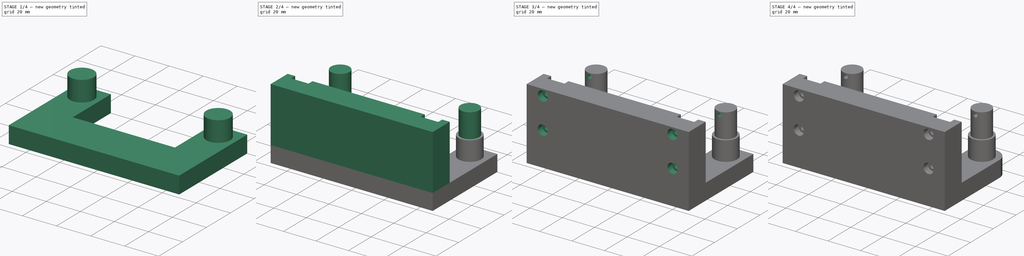
[diagram: build sequence overview — one tinted view per stage of 4, left to right]
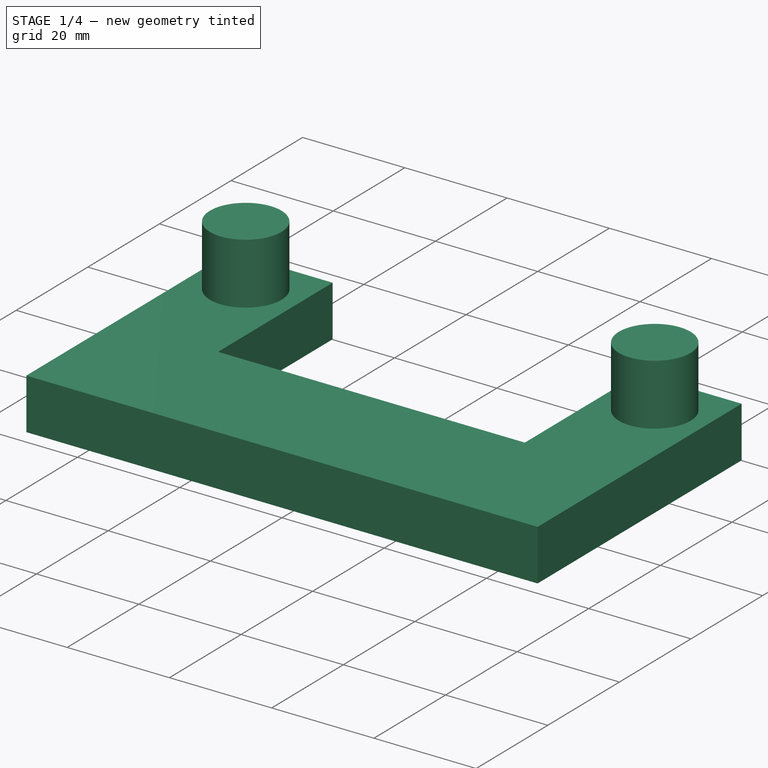
[diagram: stage 1 of 4 — iso view after this stage's code; geometry added in this stage tinted green]
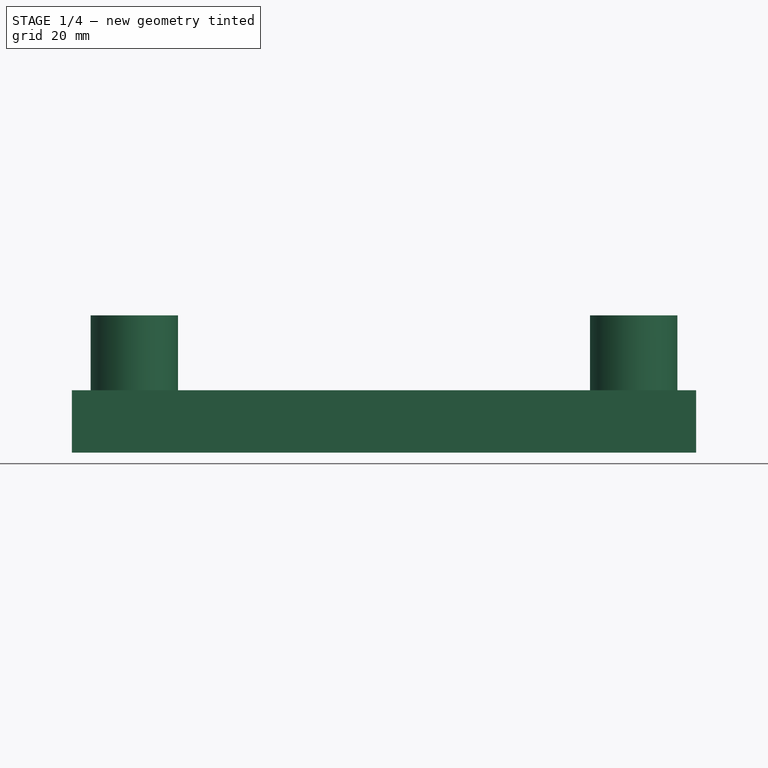
[diagram: stage 1 of 4 — front view after this stage's code; geometry added in this stage tinted green]
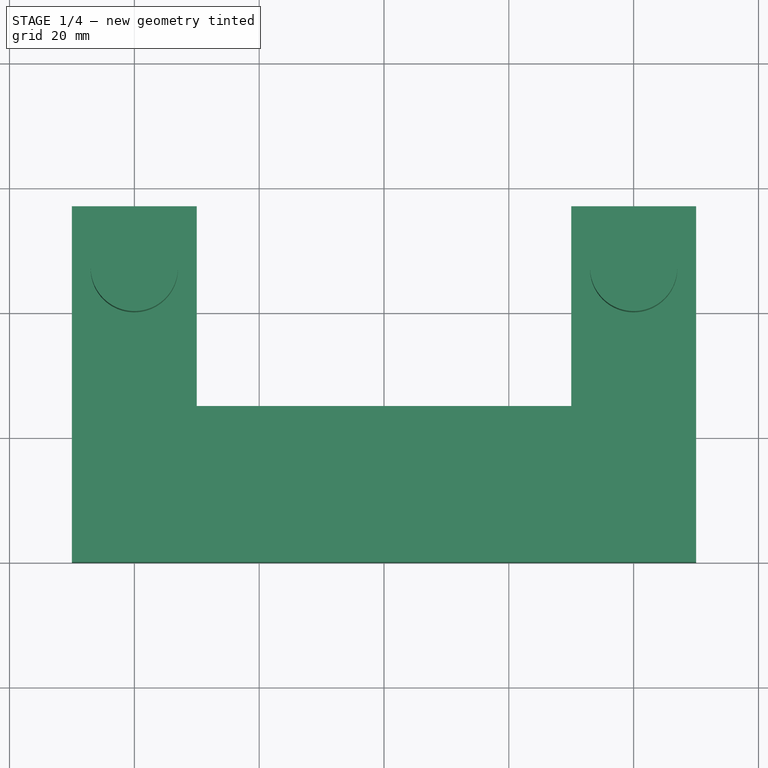
[diagram: stage 1 of 4 — top view after this stage's code; geometry added in this stage tinted green]
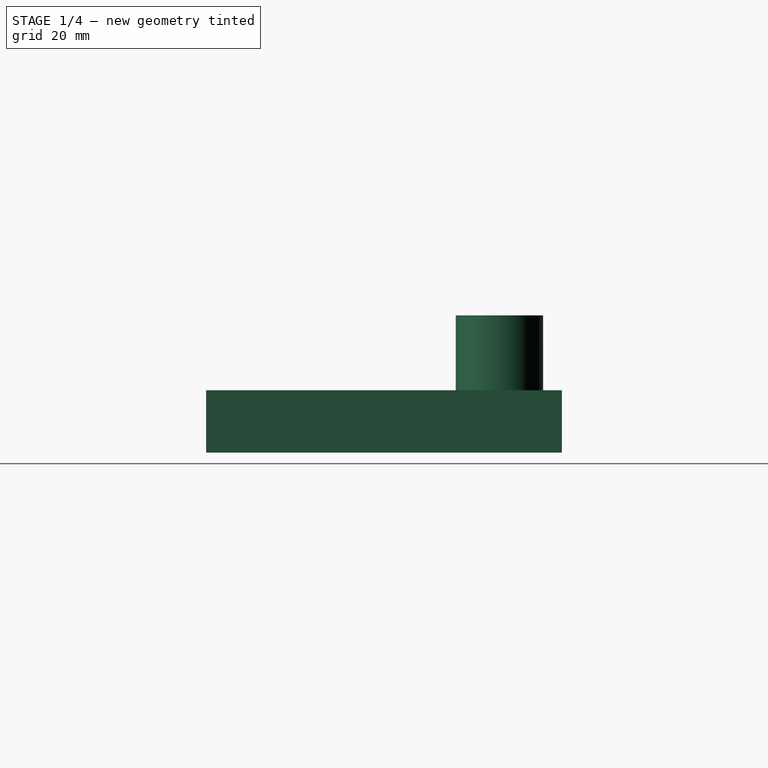
[diagram: stage 1 of 4 — right view after this stage's code; geometry added in this stage tinted green]
FCSTD DOCUMENT  (FreeCAD 0.17R13522 (Git))
Label: Suporte
License: All rights reserved
LicenseURL: http://en.wikipedia.org/wiki/All_rights_reserved
objects: Sketcher::SketchObject×7, PartDesign::Pad×4, PartDesign::Pocket×3, PartDesign::Chamfer×1, PartDesign::Fillet×1, PartDesign::Body×1
note: 24 computed .brp shape members not serialized (recipe doc carries the construction recipe); baked Part::Feature solids carry a one-line shape summary decoded from their .brp

FEATURE [Sketcher::SketchObject] Sketch
  MapMode = 5
  Support = -> [XY_Plane]
  sketch-geometry (11):
    g0: LineSegment StartX=-50 StartY=0 StartZ=0 EndX=50 EndY=0 EndZ=0
    g1: LineSegment StartX=50 StartY=0 StartZ=0 EndX=50 EndY=57 EndZ=0
    g2: LineSegment StartX=50 StartY=57 StartZ=0 EndX=30 EndY=57 EndZ=0
    g3: LineSegment StartX=30 StartY=57 StartZ=0 EndX=30 EndY=25 EndZ=0
    g4: LineSegment StartX=30 StartY=25 StartZ=0 EndX=-30 EndY=25 EndZ=0
    g5: LineSegment StartX=-30 StartY=25 StartZ=0 EndX=-30 EndY=57 EndZ=0
    g6: LineSegment StartX=-30 StartY=57 StartZ=0 EndX=-50 EndY=57 EndZ=0
    g7: LineSegment StartX=-50 StartY=57 StartZ=0 EndX=-50 EndY=0 EndZ=0
    g8: LineSegment [constr] StartX=-40 StartY=47 StartZ=0 EndX=40 EndY=47 EndZ=0
    g9: Circle [constr] CenterX=-40 CenterY=47 CenterZ=0 NormalX=0 NormalY=0 NormalZ=1 AngleXU=0 Radius=17.7
    g10: Circle [constr] CenterX=40 CenterY=47 CenterZ=0 NormalX=0 NormalY=0 NormalZ=1 AngleXU=0 Radius=17.7
  constraints (31):
    c: Coincident(g0,g1)
    c: Coincident(g1,g2)
    c: Coincident(g2,g3)
    c: Coincident(g3,g4)
    c: Coincident(g4,g5)
    c: Coincident(g5,g6)
    c: Coincident(g6,g7)
    c: Coincident(g0,g7)
    c: Horizontal(g0)
    c: Horizontal(g4)
    c: Horizontal(g6)
    c: Horizontal(g2)
    c: Vertical(g7)
    c: Vertical(g5)
    c: Vertical(g3)
    c: Vertical(g1)
    c: Symmetric(g0,g0,g-1)
    c: DistanceY(g1,g1) = 57
    c: Equal(g1,g7)
    c: Equal(g2,g6)
    c: Symmetric(g8,g8,g-2)
    c: DistanceX(g8,g8) = 80
    c: Radius(g9) = 17.7
    c: Equal(g9,g10) = 17.7
    c: Coincident(g10,g8)
    c: DistanceX(g6,g8) = 10
    c: DistanceX(g8,g4) = 10
    c: DistanceY(g8,g6) = 10
    c: Coincident(g8,g9)
    c: DistanceY(g0,g8) = 47
    c: DistanceY(g0,g3) = 25
FEATURE [PartDesign::Pad] Pad  label="SuporteEixos"
  Length = 10
  Length2 = 100
  Profile = -> Sketch
  Type = 0
FEATURE [Sketcher::SketchObject] Sketch001
  MapMode = 5
  Placement = pos=(0,0,10) rot=(0,0,1;0rad)
  Support = -> [Pad]
  sketch-geometry (3):
    g0: LineSegment [constr] StartX=-40 StartY=47 StartZ=0 EndX=40 EndY=47 EndZ=0
    g1: Circle CenterX=-40 CenterY=47 CenterZ=0 NormalX=0 NormalY=0 NormalZ=1 AngleXU=0 Radius=7
    g2: Circle CenterX=40 CenterY=47 CenterZ=0 NormalX=0 NormalY=0 NormalZ=1 AngleXU=0 Radius=7
  constraints (8):
    c: Horizontal(g0)
    c: Symmetric(g0,g0,g-2)
    c: Radius(g1) = 7
    c: Equal(g1,g2) = 7
    c: Coincident(g2,g0)
    c: Coincident(g1,g0)
    c: DistanceX(g0,g0) = 80
    c: DistanceY(g-1,g0) = 47
FEATURE [PartDesign::Pad] Pad001  label="EixoCalco"
  BaseFeature = -> Pad
  Length = 12
  Length2 = 100
  Profile = -> Sketch001
  Type = 0
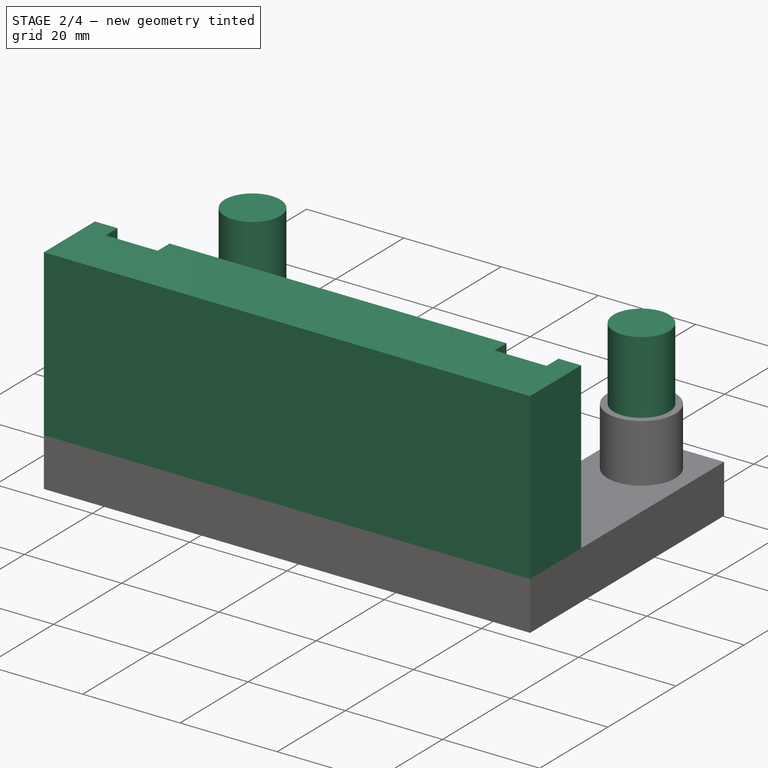
[diagram: stage 2 of 4 — iso view after this stage's code; geometry added in this stage tinted green]
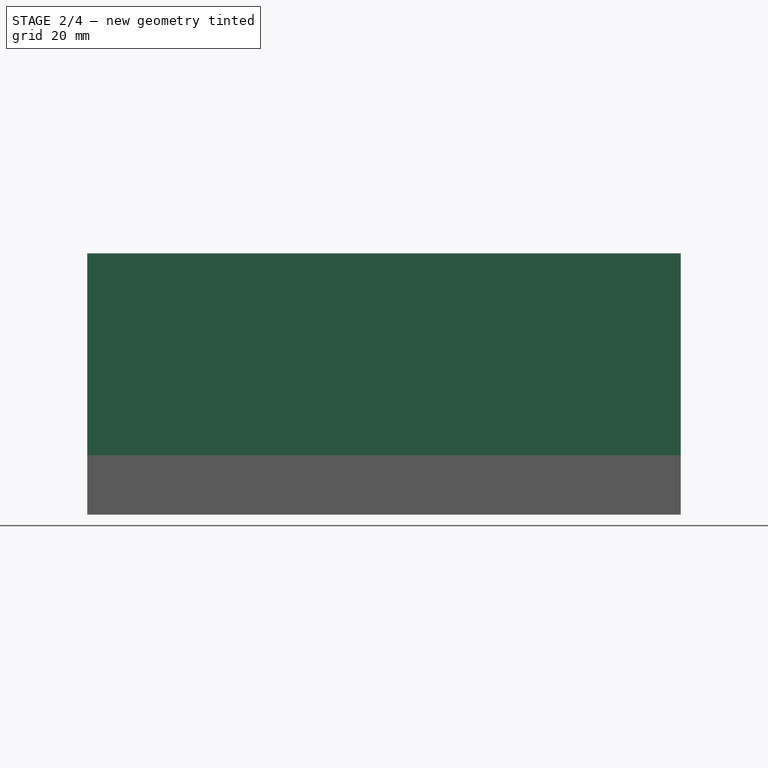
[diagram: stage 2 of 4 — front view after this stage's code; geometry added in this stage tinted green]
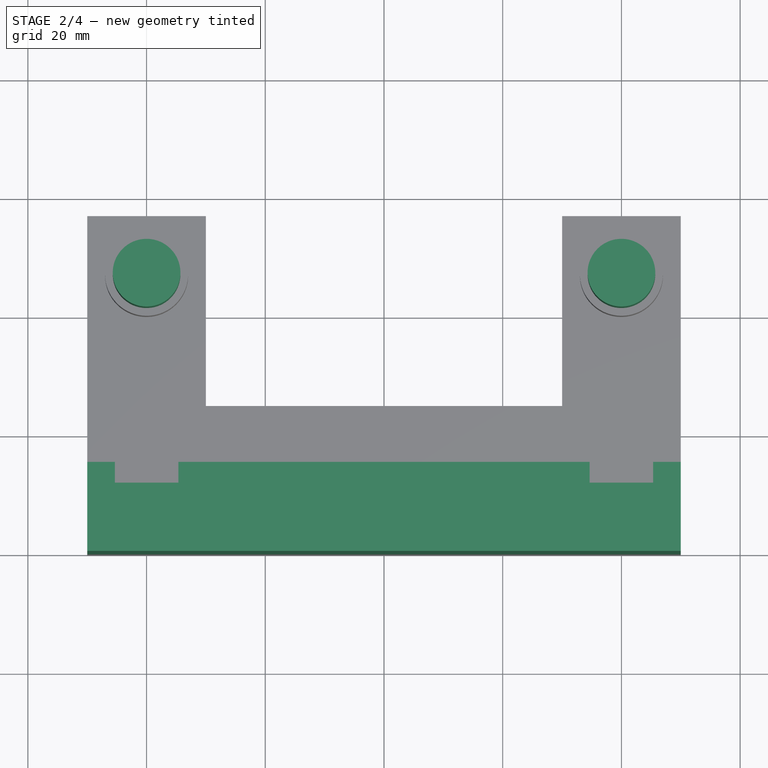
[diagram: stage 2 of 4 — top view after this stage's code; geometry added in this stage tinted green]
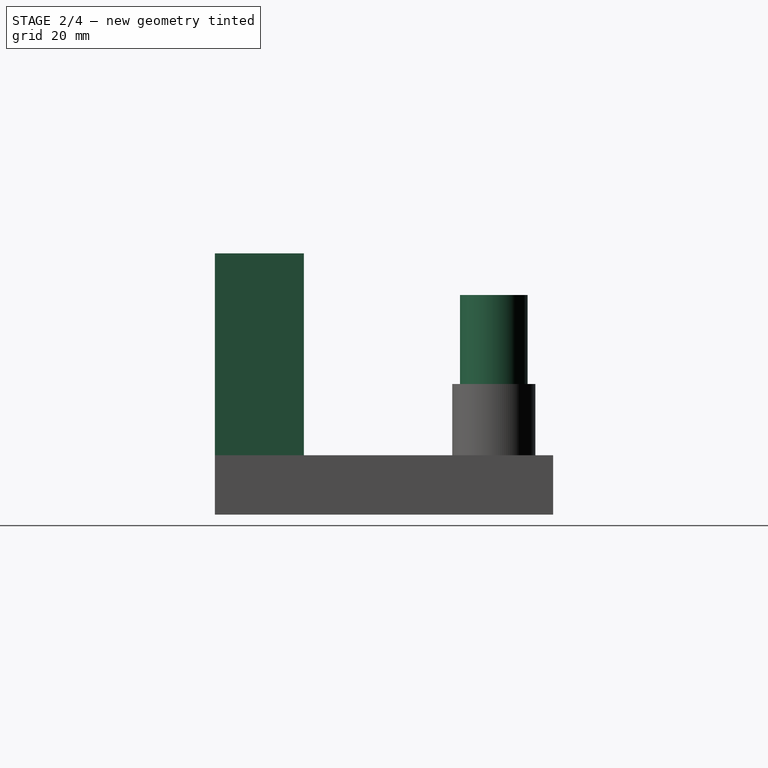
[diagram: stage 2 of 4 — right view after this stage's code; geometry added in this stage tinted green]
FEATURE [Sketcher::SketchObject] Sketch002
  MapMode = 5
  Placement = pos=(0,0,22) rot=(0,0,1;0rad)
  Support = -> [Pad001]
  sketch-geometry (3):
    g0: LineSegment [constr] StartX=-40 StartY=47 StartZ=0 EndX=40 EndY=47 EndZ=0
    g1: Circle CenterX=-40 CenterY=47 CenterZ=0 NormalX=0 NormalY=0 NormalZ=1 AngleXU=0 Radius=5.7
    g2: Circle CenterX=40 CenterY=47 CenterZ=0 NormalX=0 NormalY=0 NormalZ=1 AngleXU=0 Radius=5.7
  constraints (7):
    c: Symmetric(g0,g0,g-2)
    c: DistanceX(g0,g0) = 80
    c: DistanceY(g-1,g0) = 47
    c: Radius(g1) = 5.7
    c: Equal(g1,g2) = 6
    c: Coincident(g2,g0)
    c: Coincident(g1,g0)
FEATURE [PartDesign::Pad] Pad002  label="EixoRolamento"
  BaseFeature = -> Pad001
  Length = 15
  Length2 = 100
  Profile = -> Sketch002
  Type = 0
FEATURE [Sketcher::SketchObject] Sketch003
  ExternalGeometry = -> [Pad002]
  MapMode = 5
  Placement = pos=(0,0,10) rot=(0,0,1;0rad)
  Support = -> [Pad002]
  sketch-geometry (13):
    g0: LineSegment StartX=-50 StartY=15 StartZ=0 EndX=-45.35 EndY=15 EndZ=0
    g1: LineSegment StartX=50 StartY=15 StartZ=0 EndX=50 EndY=0 EndZ=0
    g2: LineSegment StartX=50 StartY=0 StartZ=0 EndX=-50 EndY=0 EndZ=0
    g3: LineSegment StartX=-50 StartY=0 StartZ=0 EndX=-50 EndY=15 EndZ=0
    g4: LineSegment [constr] StartX=-40 StartY=11.5 StartZ=0 EndX=40 EndY=11.5 EndZ=0
    g5: LineSegment StartX=-34.65 StartY=15 StartZ=0 EndX=-34.65 EndY=11.5 EndZ=0
    g6: LineSegment StartX=-34.65 StartY=11.5 StartZ=0 EndX=-45.35 EndY=11.5 EndZ=0
    g7: LineSegment StartX=-45.35 StartY=11.5 StartZ=0 EndX=-45.35 EndY=15 EndZ=0
    g8: LineSegment StartX=45.35 StartY=15 StartZ=0 EndX=45.35 EndY=11.5 EndZ=0
    g9: LineSegment StartX=45.35 StartY=11.5 StartZ=0 EndX=34.65 EndY=11.5 EndZ=0
    g10: LineSegment StartX=34.65 StartY=11.5 StartZ=0 EndX=34.65 EndY=15 EndZ=0
    g11: LineSegment StartX=-34.65 StartY=15 StartZ=0 EndX=34.65 EndY=15 EndZ=0
    g12: LineSegment StartX=45.35 StartY=15 StartZ=0 EndX=50 EndY=15 EndZ=0
  constraints (37):
    c: Coincident(g12,g1)
    c: Coincident(g1,g2)
    c: Coincident(g2,g3)
    c: Coincident(g3,g0)
    c: Horizontal(g0)
    c: Horizontal(g2)
    c: Vertical(g1)
    c: Vertical(g3)
    c: Coincident(g2,g-3)
    c: Coincident(g1,g-3)
    c: Symmetric(g4,g4,g-2)
    c: DistanceX(g4,g4) = 80
    c: DistanceY(g3,g3) = 15
    c: Coincident(g5,g6)
    c: Coincident(g6,g7)
    c: Horizontal(g6)
    c: Vertical(g5)
    c: Vertical(g7)
    c: Coincident(g8,g9)
    c: Coincident(g9,g10)
    c: Horizontal(g9)
    c: Vertical(g8)
    c: Vertical(g10)
    c: DistanceY(g5,g5) = 3.5
    c: Equal(g5,g10)
    c: DistanceX(g6,g6) = 10.7
    c: Equal(g6,g9)
    c: Equal(g5,g7)
    c: Equal(g5,g8)
    c: Symmetric(g9,g8,g4)
    c: Symmetric(g6,g5,g4)
    c: Coincident(g0,g7)
    c: PointOnObject(g11,g5)
    c: Tangent(g0,g11)
    c: PointOnObject(g11,g10)
    c: PointOnObject(g12,g8)
    c: Tangent(g11,g12)
FEATURE [PartDesign::Pad] Pad003  label="Base"
  BaseFeature = -> Pad002
  Length = 34
  Length2 = 100
  Profile = -> Sketch003
  Type = 0
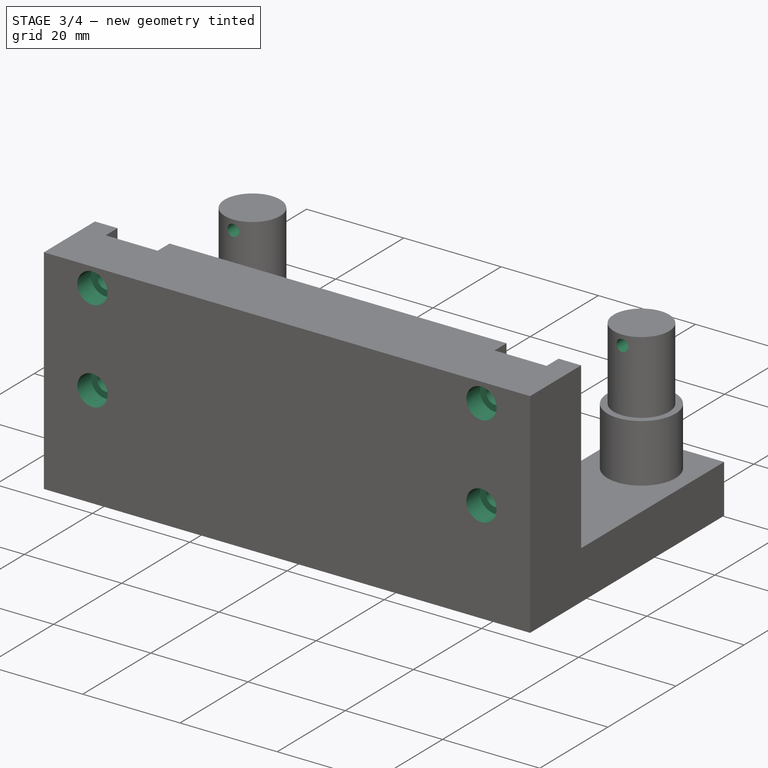
[diagram: stage 3 of 4 — iso view after this stage's code; geometry added in this stage tinted green]
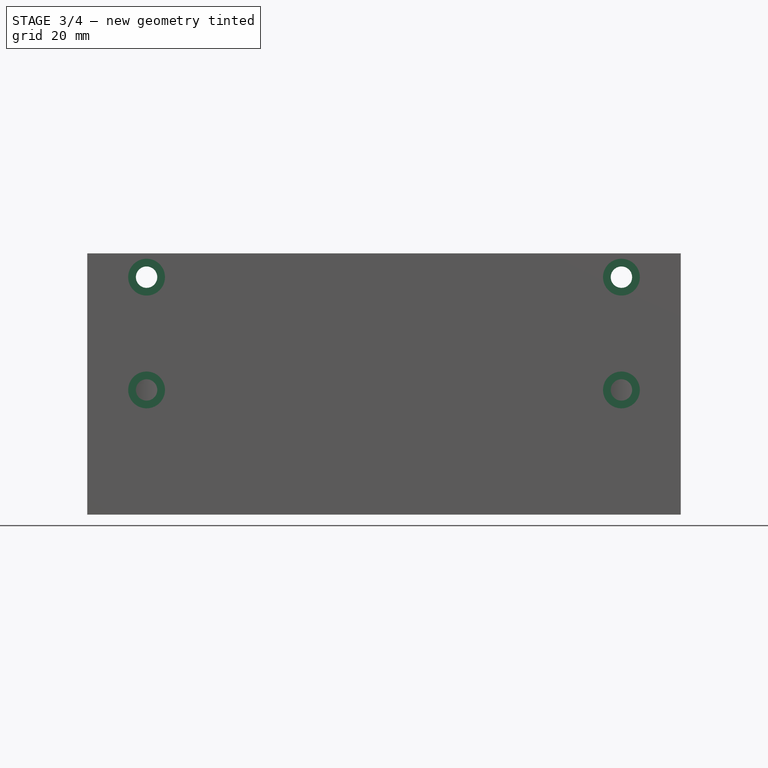
[diagram: stage 3 of 4 — front view after this stage's code; geometry added in this stage tinted green]
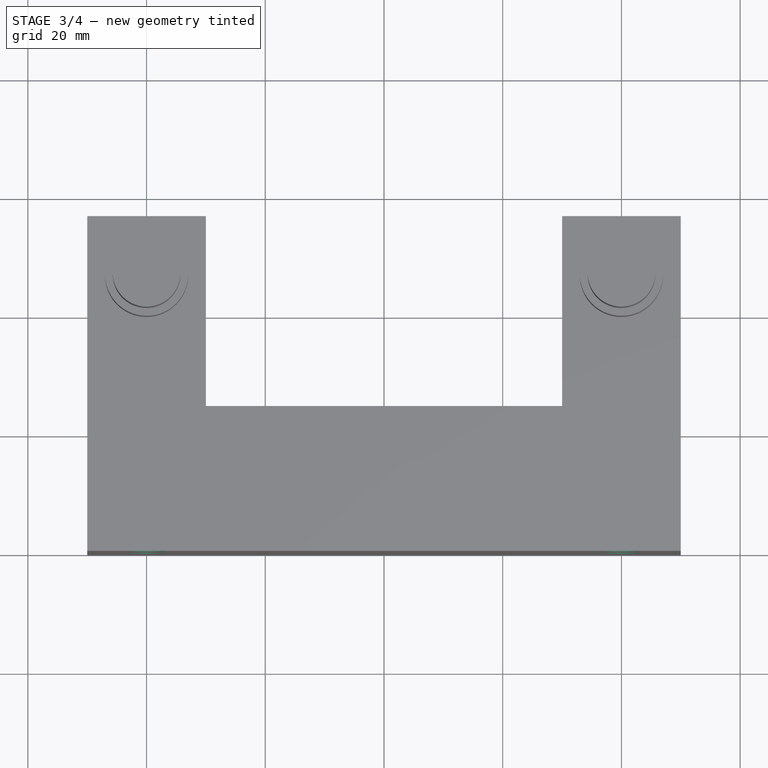
[diagram: stage 3 of 4 — top view after this stage's code; geometry added in this stage tinted green]
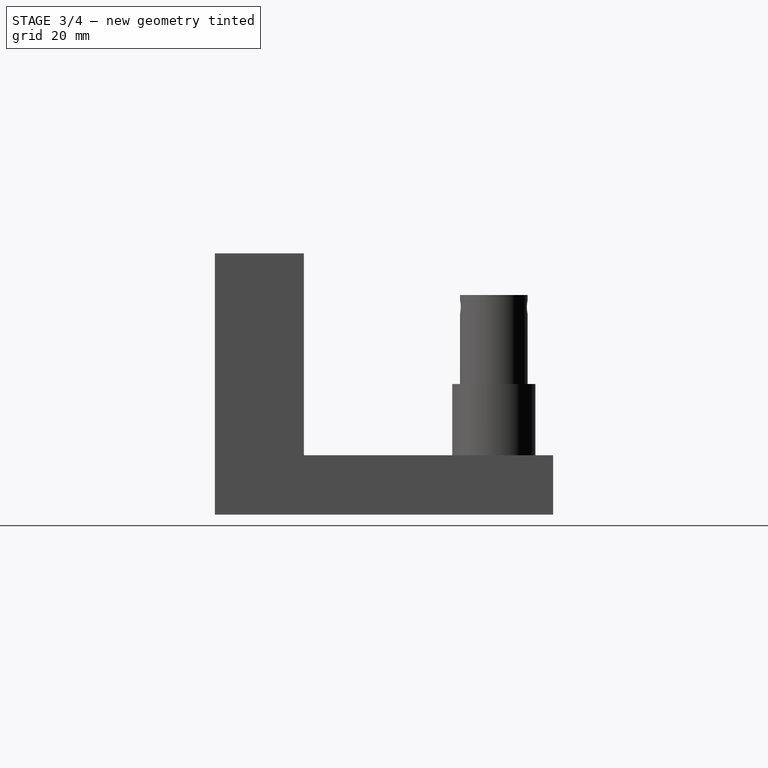
[diagram: stage 3 of 4 — right view after this stage's code; geometry added in this stage tinted green]
FEATURE [Sketcher::SketchObject] Sketch004
  ExternalGeometry = -> [Pad003]
  MapMode = 5
  Placement = pos=(0,11.5,0) rot=(0,0.707107,0.707107;3.14159rad)
  Support = -> [Pad003]
  sketch-geometry (6):
    g0: LineSegment [constr] StartX=-40 StartY=40 StartZ=0 EndX=-40 EndY=21 EndZ=0
    g1: Circle CenterX=-40 CenterY=40 CenterZ=0 NormalX=0 NormalY=0 NormalZ=1 AngleXU=0 Radius=1.8
    g2: Circle CenterX=-40 CenterY=21 CenterZ=0 NormalX=0 NormalY=0 NormalZ=1 AngleXU=0 Radius=1.8
    g3: LineSegment [constr] StartX=40 StartY=40 StartZ=0 EndX=40 EndY=21 EndZ=0
    g4: Circle CenterX=40 CenterY=40 CenterZ=0 NormalX=0 NormalY=0 NormalZ=1 AngleXU=0 Radius=1.8
    g5: Circle CenterX=40 CenterY=21 CenterZ=0 NormalX=0 NormalY=0 NormalZ=1 AngleXU=0 Radius=1.8
  constraints (16):
    c: Vertical(g0)
    c: DistanceY(g0,g0) = 19
    c: Coincident(g0,g2)
    c: Coincident(g0,g1)
    c: Radius(g1) = 1.8
    c: Equal(g1,g2)
    c: Symmetric(g-4,g-4,g0)
    c: DistanceY(g-3,g0) = 11
    c: Vertical(g3)
    c: Equal(g0,g3) = 19
    c: Coincident(g3,g5)
    c: Coincident(g3,g4)
    c: Equal(g1,g4) = 1.8
    c: Equal(g4,g5)
    c: Symmetric(g-6,g-6,g3)
    c: DistanceY(g-5,g3) = 11
FEATURE [PartDesign::Pocket] Pocket  label="FurosSensor"
  BaseFeature = -> Pad003
  Length = 5
  Length2 = 100
  Profile = -> Sketch004
  Type = 2
FEATURE [Sketcher::SketchObject] Sketch005
  MapMode = 5
  Placement = pos=(0,57,0) rot=(0,0.707107,0.707107;3.14159rad)
  Support = -> [Pocket]
  sketch-geometry (3):
    g0: LineSegment [constr] StartX=-40 StartY=34.9665 StartZ=0 EndX=40 EndY=34.9665 EndZ=0
    g1: Circle CenterX=-40 CenterY=34.9665 CenterZ=0 NormalX=0 NormalY=0 NormalZ=1 AngleXU=0 Radius=1.2
    g2: Circle CenterX=40 CenterY=34.9665 CenterZ=0 NormalX=0 NormalY=0 NormalZ=1 AngleXU=0 Radius=1.2
  constraints (6):
    c: Symmetric(g0,g0,g-2)
    c: DistanceX(g0,g0) = 80
    c: Radius(g1) = 1.2
    c: Equal(g1,g2)
    c: Coincident(g0,g2)
    c: Coincident(g1,g0)
FEATURE [PartDesign::Pocket] Pocket001
  BaseFeature = -> Pocket
  Length = 18
  Length2 = 100
  Profile = -> Sketch005
  Type = 0
FEATURE [Sketcher::SketchObject] Sketch006
  ExternalGeometry = -> [Pocket001]
  MapMode = 5
  Placement = pos=(0,0,0) rot=(1,0,0;1.5708rad)
  Support = -> [Pocket001]
  sketch-geometry (8):
    g0: LineSegment [constr] StartX=-40 StartY=40 StartZ=0 EndX=40 EndY=40 EndZ=0
    g1: LineSegment [constr] StartX=40 StartY=40 StartZ=0 EndX=40 EndY=21 EndZ=0
    g2: LineSegment [constr] StartX=40 StartY=21 StartZ=0 EndX=-40 EndY=21 EndZ=0
    g3: LineSegment [constr] StartX=-40 StartY=21 StartZ=0 EndX=-40 EndY=40 EndZ=0
    g4: Circle CenterX=-40 CenterY=40 CenterZ=0 NormalX=0 NormalY=0 NormalZ=1 AngleXU=0 Radius=3.1
    g5: Circle CenterX=40 CenterY=40 CenterZ=0 NormalX=0 NormalY=0 NormalZ=1 AngleXU=0 Radius=3.1
    g6: Circle CenterX=40 CenterY=21 CenterZ=0 NormalX=0 NormalY=0 NormalZ=1 AngleXU=0 Radius=3.1
    g7: Circle CenterX=-40 CenterY=21 CenterZ=0 NormalX=0 NormalY=0 NormalZ=1 AngleXU=0 Radius=3.1
  constraints (20):
    c: Coincident(g0,g1)
    c: Coincident(g1,g2)
    c: Coincident(g2,g3)
    c: Coincident(g3,g0)
    c: Horizontal(g0)
    c: Horizontal(g2)
    c: Vertical(g1)
    c: Vertical(g3)
    c: Symmetric(g2,g1,g-2)
    c: DistanceX(g2,g2) = 80
    c: DistanceY(g3,g3) = 19
    c: DistanceY(g-3,g1) = 11
    c: Coincident(g4,g0)
    c: Coincident(g7,g2)
    c: Coincident(g5,g0)
    c: Coincident(g6,g1)
    c: Radius(g4) = 3.1
    c: Equal(g4,g5)
    c: Equal(g4,g6)
    c: Equal(g4,g7)
FEATURE [PartDesign::Pocket] Pocket002
  BaseFeature = -> Pocket001
  Length = 4
  Length2 = 100
  Profile = -> Sketch006
  Type = 0
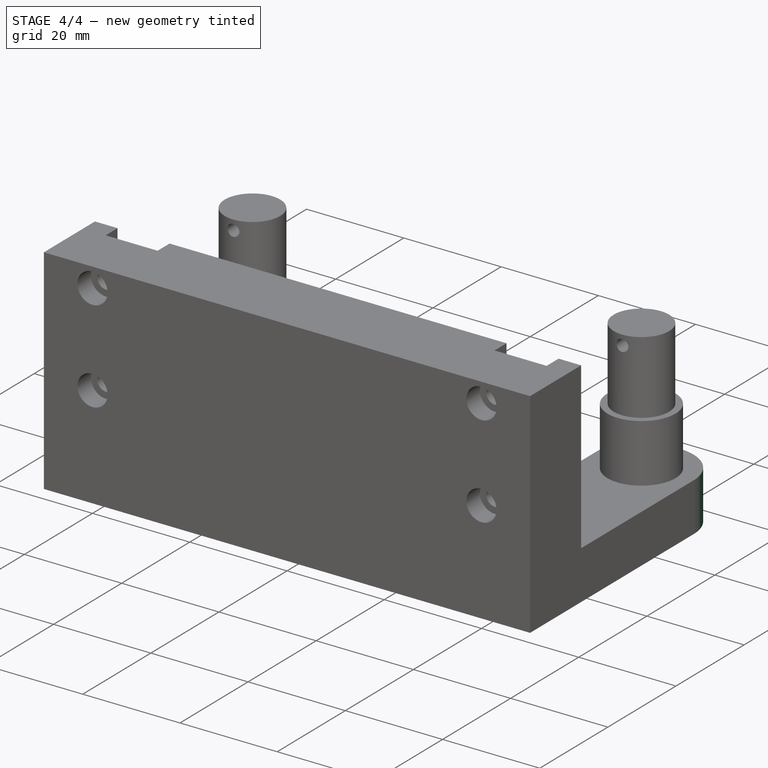
[diagram: stage 4 of 4 — iso view after this stage's code; geometry added in this stage tinted green]
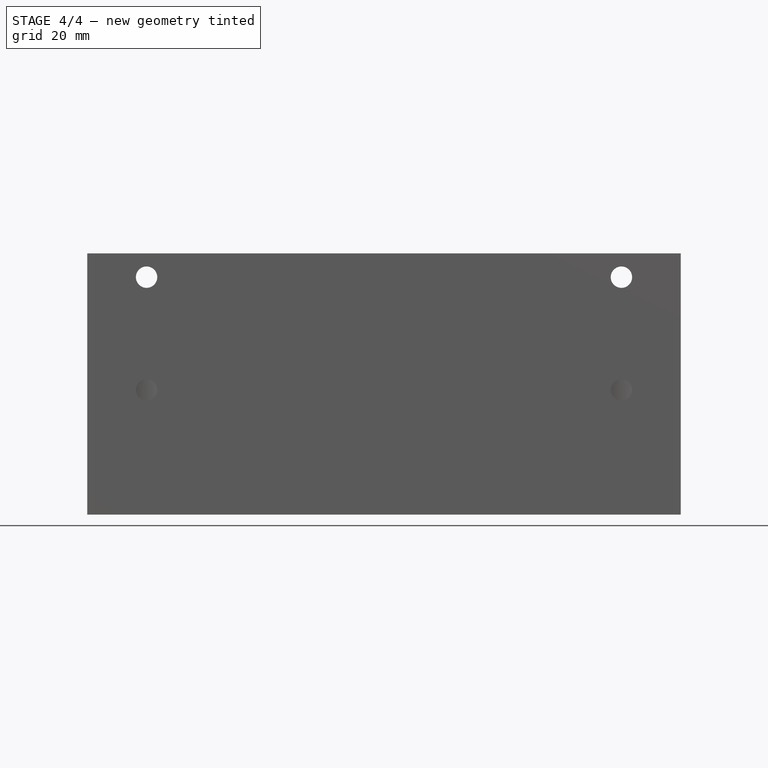
[diagram: stage 4 of 4 — front view after this stage's code; geometry added in this stage tinted green]
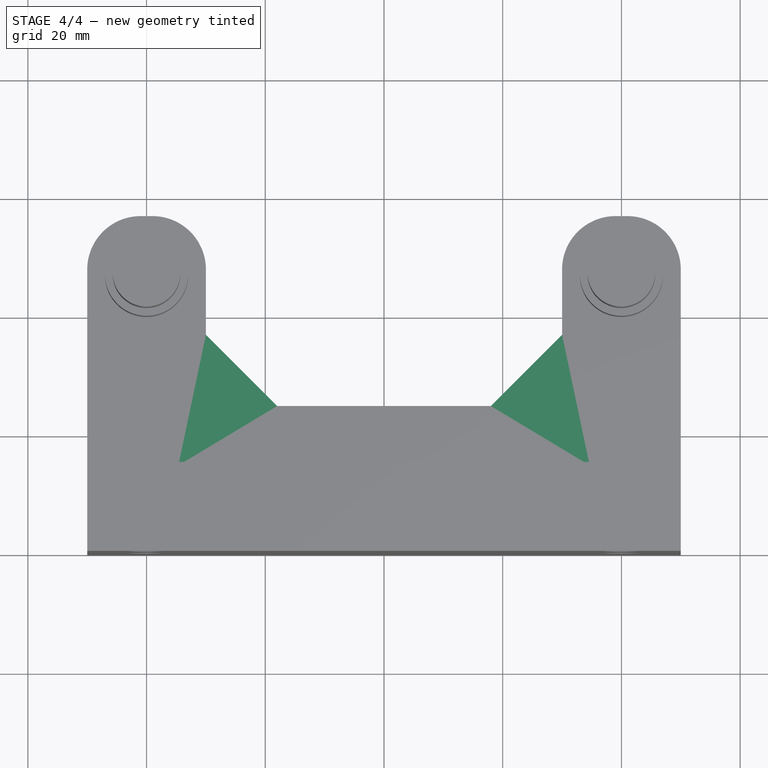
[diagram: stage 4 of 4 — top view after this stage's code; geometry added in this stage tinted green]
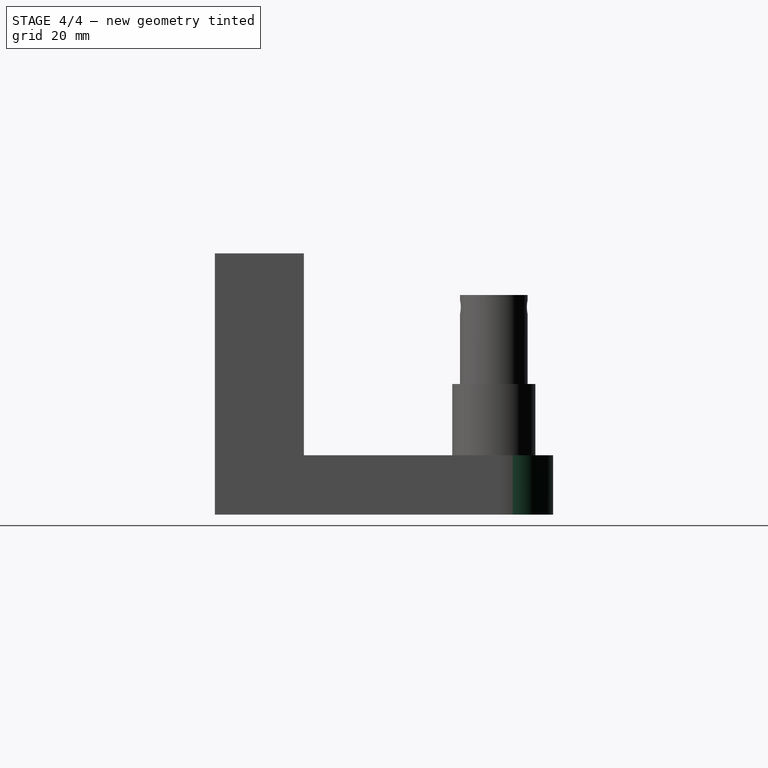
[diagram: stage 4 of 4 — right view after this stage's code; geometry added in this stage tinted green]
FEATURE [PartDesign::Chamfer] Chamfer
  Base = -> Pocket002 [Edge19,Edge17]
  BaseFeature = -> Pocket002
  Size = 12
FEATURE [PartDesign::Fillet] Fillet
  Base = -> Chamfer [Edge29,Edge27,Edge12,Edge16]
  BaseFeature = -> Chamfer
  Radius = 9
FEATURE [PartDesign::Body] Body
  Group = -> [Sketch,Pad,Sketch001,Pad001,Sketch002,Pad002,Sketch003,Pad003,Sketch004,Pocket,Sketch005,Pocket001,Sketch006,Pocket002,Chamfer,Fillet]
  Origin = -> Origin
  Tip = -> Fillet
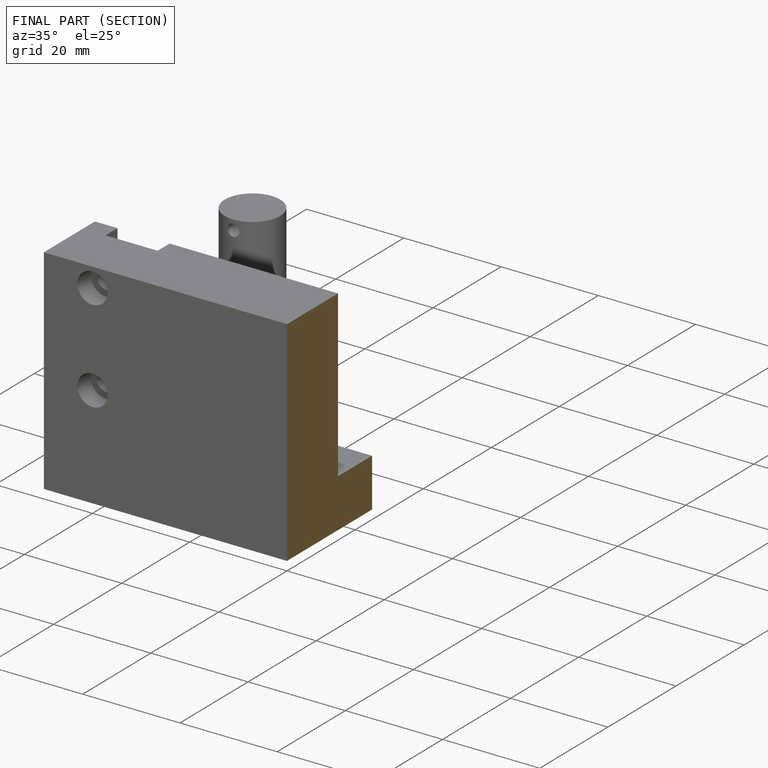
[diagram: finished part — half-section view (interior)]
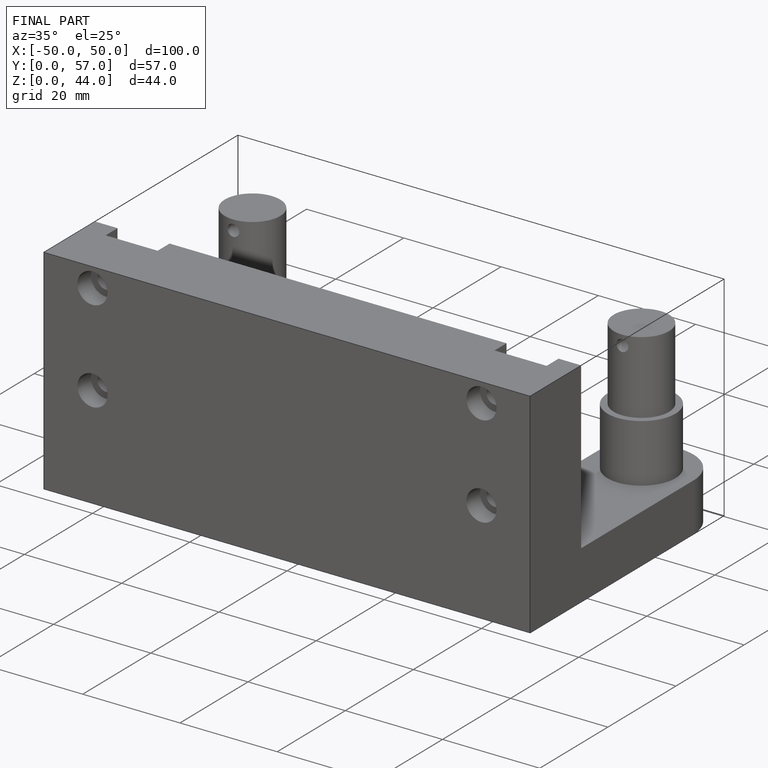
[diagram: finished part — iso view with bounding-box wireframe]
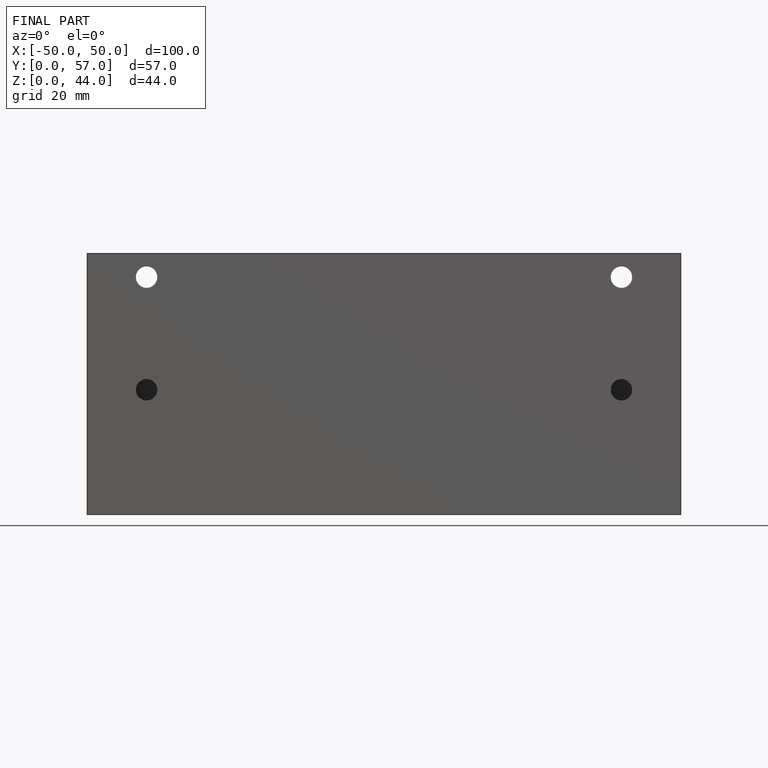
[diagram: finished part — front view with bounding-box wireframe]
